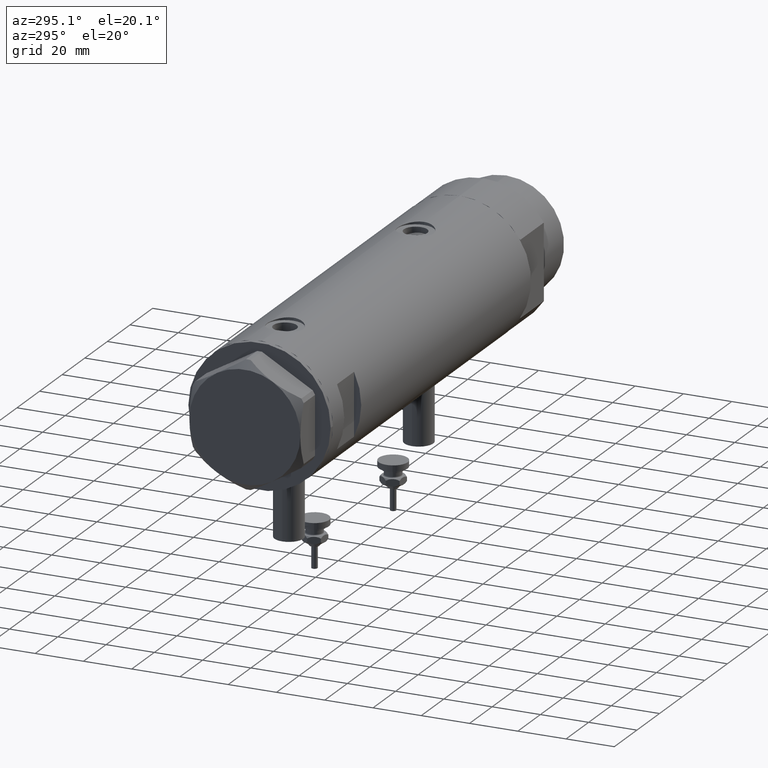
[diagram: clean part render]
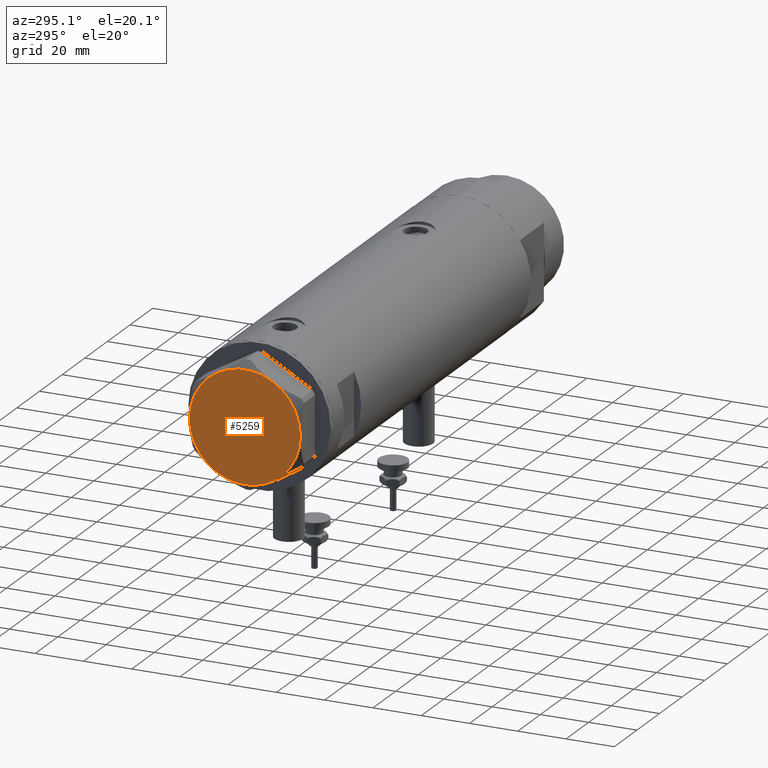
[diagram: same view with one face highlighted and labeled with its STEP entity id]
A machine part, auxiliary view. The second image highlights one B-rep face of the part: STEP entity #5259.
In plain terms, the highlighted planar face has unit normal (-1, -0, 0).
Its self-contained STEP definition (entity closure, byte-faithful):
#17 = CIRCLE ( 'NONE', #691, 23.00000000000004619 ) ;
#64 = ORIENTED_EDGE ( 'NONE', *, *, #3320, .T. ) ;
#121 = DIRECTION ( 'NONE',  ( 1.000000000000000000, 0.000000000000000000, 0.000000000000000000 ) ) ;
#357 = DIRECTION ( 'NONE',  ( 1.000000000000000000, 0.000000000000000000, 0.000000000000000000 ) ) ;
#391 = CARTESIAN_POINT ( 'NONE',  ( -11.50000000000004441, 19.91858428704211548, 13.00000000000000000 ) ) ;
#428 = CARTESIAN_POINT ( 'NONE',  ( 0.000000000000000000, 0.000000000000000000, 13.00000000000000000 ) ) ;
#487 = ORIENTED_EDGE ( 'NONE', *, *, #1384, .T. ) ;
#526 = CARTESIAN_POINT ( 'NONE',  ( 22.99999999999995026, 2.373657066004705010E-13, 13.00000000000000000 ) ) ;
#691 = AXIS2_PLACEMENT_3D ( 'NONE', #3846, #720, #1203 ) ;
#702 = AXIS2_PLACEMENT_3D ( 'NONE', #428, #2238, #3030 ) ;
#720 = DIRECTION ( 'NONE',  ( 0.000000000000000000, 0.000000000000000000, 1.000000000000000000 ) ) ;
#721 = CARTESIAN_POINT ( 'NONE',  ( 0.000000000000000000, 0.000000000000000000, 13.00000000000000000 ) ) ;
#891 = AXIS2_PLACEMENT_3D ( 'NONE', #4676, #2520, #3339 ) ;
#991 = CIRCLE ( 'NONE', #702, 23.00000000000004619 ) ;
#1203 = DIRECTION ( 'NONE',  ( 1.000000000000000000, 0.000000000000000000, 0.000000000000000000 ) ) ;
#1384 = EDGE_CURVE ( 'NONE', #2269, #3904, #17, .T. ) ;
#1497 = EDGE_CURVE ( 'NONE', #4056, #1860, #2489, .T. ) ;
#1508 = EDGE_LOOP ( 'NONE', ( #64, #2048, #487, #3547, #5601, #4188 ) ) ;
#1583 = VERTEX_POINT ( 'NONE', #2680 ) ;
#1757 = EDGE_CURVE ( 'NONE', #3904, #1583, #5189, .T. ) ;
#1860 = VERTEX_POINT ( 'NONE', #4470 ) ;
#1893 = DIRECTION ( 'NONE',  ( 1.000000000000000000, 0.000000000000000000, -0.000000000000000000 ) ) ;
#2048 = ORIENTED_EDGE ( 'NONE', *, *, #2552, .T. ) ;
#2215 = CARTESIAN_POINT ( 'NONE',  ( 11.49999999999990408, 19.91858428704219364, 13.00000000000000000 ) ) ;
#2226 = CIRCLE ( 'NONE', #2320, 23.00000000000004619 ) ;
#2238 = DIRECTION ( 'NONE',  ( 0.000000000000000000, 0.000000000000000000, 1.000000000000000000 ) ) ;
#2269 = VERTEX_POINT ( 'NONE', #2215 ) ;
#2320 = AXIS2_PLACEMENT_3D ( 'NONE', #721, #2532, #121 ) ;
#2489 = CIRCLE ( 'NONE', #5847, 23.00000000000004619 ) ;
#2520 = DIRECTION ( 'NONE',  ( 0.000000000000000000, 0.000000000000000000, 1.000000000000000000 ) ) ;
#2532 = DIRECTION ( 'NONE',  ( 0.000000000000000000, 0.000000000000000000, 1.000000000000000000 ) ) ;
#2552 = EDGE_CURVE ( 'NONE', #4903, #2269, #991, .T. ) ;
#2613 = CARTESIAN_POINT ( 'NONE',  ( 0.000000000000000000, 0.000000000000000000, 13.00000000000000000 ) ) ;
#2679 = CARTESIAN_POINT ( 'NONE',  ( 0.000000000000000000, 0.000000000000000000, 13.00000000000000000 ) ) ;
#2680 = CARTESIAN_POINT ( 'NONE',  ( -23.00000000000004619, -8.112498833180673323E-14, 13.00000000000000000 ) ) ;
#2688 = DIRECTION ( 'NONE',  ( 0.000000000000000000, 0.000000000000000000, 1.000000000000000000 ) ) ;
#3030 = DIRECTION ( 'NONE',  ( 1.000000000000000000, 0.000000000000000000, 0.000000000000000000 ) ) ;
#3280 = AXIS2_PLACEMENT_3D ( 'NONE', #2679, #5339, #3521 ) ;
#3320 = EDGE_CURVE ( 'NONE', #1860, #4903, #2226, .T. ) ;
#3339 = DIRECTION ( 'NONE',  ( 1.000000000000000000, 0.000000000000000000, 0.000000000000000000 ) ) ;
#3521 = DIRECTION ( 'NONE',  ( 1.000000000000000000, 0.000000000000000000, 0.000000000000000000 ) ) ;
#3547 = ORIENTED_EDGE ( 'NONE', *, *, #1757, .T. ) ;
#3846 = CARTESIAN_POINT ( 'NONE',  ( 0.000000000000000000, 0.000000000000000000, 13.00000000000000000 ) ) ;
#3904 = VERTEX_POINT ( 'NONE', #391 ) ;
#3961 = EDGE_CURVE ( 'NONE', #1583, #4056, #5668, .T. ) ;
#4032 = PLANE ( 'NONE',  #5883 ) ;
#4056 = VERTEX_POINT ( 'NONE', #5679 ) ;
#4062 = FACE_OUTER_BOUND ( 'NONE', #1508, .T. ) ;
#4188 = ORIENTED_EDGE ( 'NONE', *, *, #1497, .T. ) ;
#4445 = DIRECTION ( 'NONE',  ( 0.000000000000000000, 0.000000000000000000, 1.000000000000000000 ) ) ;
#4470 = CARTESIAN_POINT ( 'NONE',  ( 11.50000000000018296, -19.91858428704203732, 13.00000000000000000 ) ) ;
#4676 = CARTESIAN_POINT ( 'NONE',  ( 0.000000000000000000, 0.000000000000000000, 13.00000000000000000 ) ) ;
#4903 = VERTEX_POINT ( 'NONE', #526 ) ;
#5189 = CIRCLE ( 'NONE', #891, 23.00000000000004619 ) ;
#5259 = ADVANCED_FACE ( 'NONE', ( #4062 ), #4032, .T. ) ;
#5339 = DIRECTION ( 'NONE',  ( 0.000000000000000000, 0.000000000000000000, 1.000000000000000000 ) ) ;
#5437 = CARTESIAN_POINT ( 'NONE',  ( 0.000000000000000000, 0.000000000000000000, 13.00000000000000000 ) ) ;
#5601 = ORIENTED_EDGE ( 'NONE', *, *, #3961, .T. ) ;
#5668 = CIRCLE ( 'NONE', #3280, 23.00000000000004619 ) ;
#5679 = CARTESIAN_POINT ( 'NONE',  ( -11.49999999999990585, -19.91858428704219364, 13.00000000000000000 ) ) ;
#5847 = AXIS2_PLACEMENT_3D ( 'NONE', #2613, #4445, #357 ) ;
#5883 = AXIS2_PLACEMENT_3D ( 'NONE', #5437, #2688, #1893 ) ;